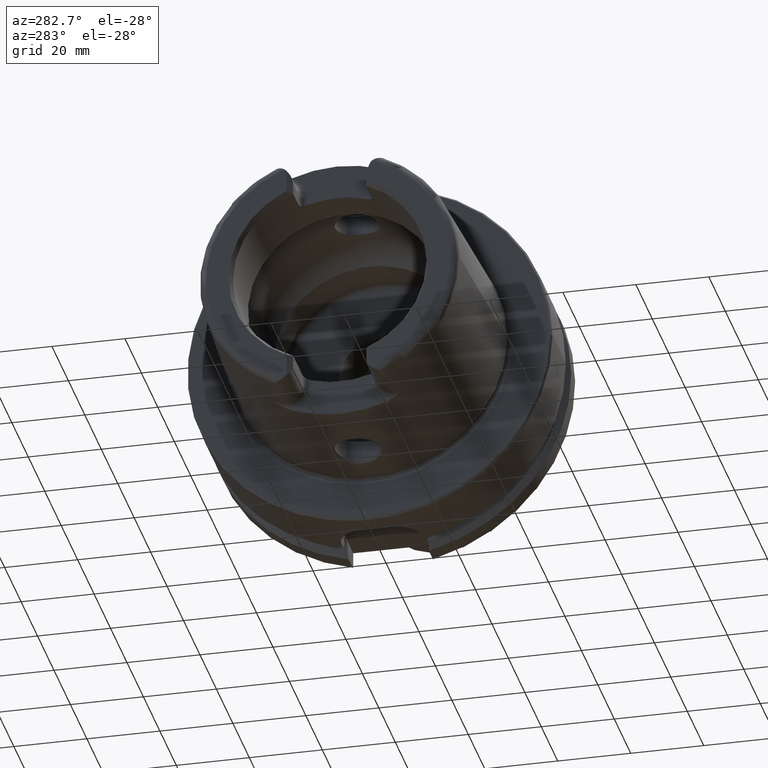
[diagram: clean part render]
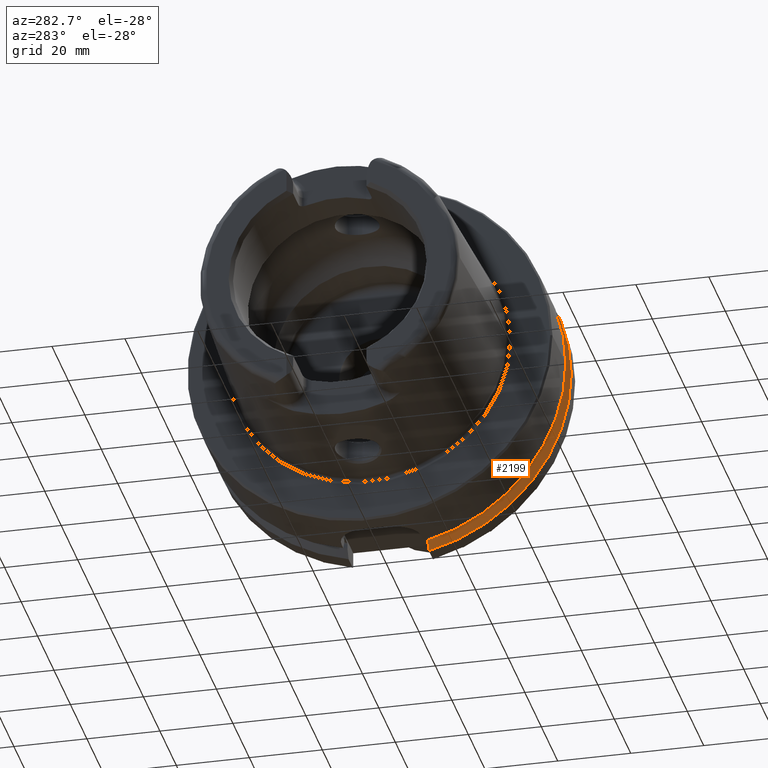
[diagram: same view with one face highlighted and labeled with its STEP entity id]
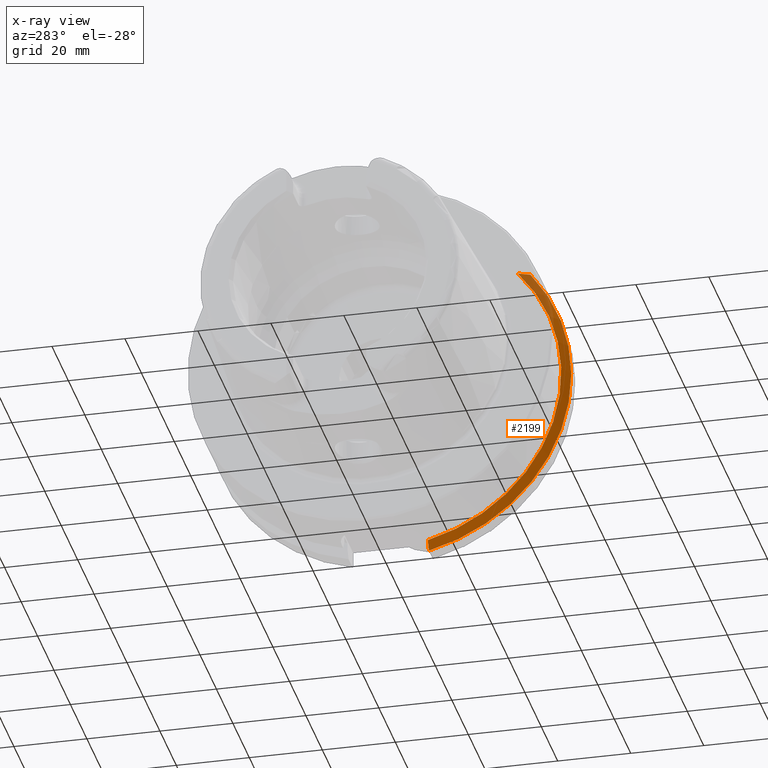
[diagram: x-ray of the same camera — body ghosted, the highlighted face saturated]
A machine part, auxiliary view. The second image highlights one B-rep face of the part: STEP entity #2199.
The next image is the same camera in x-ray: the body ghosted, the highlighted face saturated — about 12% of this face is hidden behind the body in this view.
In plain terms, the highlighted conical surface has half-angle 60 deg.
Its self-contained STEP definition (entity closure, byte-faithful):
#20=(
BOUNDED_CURVE()
B_SPLINE_CURVE(2,(#4195,#4196,#4197),.UNSPECIFIED.,.F.,.F.)
B_SPLINE_CURVE_WITH_KNOTS((3,3),(0.,0.343884390880419),.UNSPECIFIED.)
CURVE()
GEOMETRIC_REPRESENTATION_ITEM()
RATIONAL_B_SPLINE_CURVE((1.,1.00052016257005,1.))
REPRESENTATION_ITEM('')
);
#25=(
BOUNDED_CURVE()
B_SPLINE_CURVE(2,(#4410,#4411,#4412),.UNSPECIFIED.,.F.,.F.)
B_SPLINE_CURVE_WITH_KNOTS((3,3),(0.,0.28292349080556),.UNSPECIFIED.)
CURVE()
GEOMETRIC_REPRESENTATION_ITEM()
RATIONAL_B_SPLINE_CURVE((1.,1.0003193410929,1.))
REPRESENTATION_ITEM('')
);
#159=CONICAL_SURFACE('',#2497,48.7987976320958,1.0471975511966);
#311=FACE_OUTER_BOUND('',#448,.T.);
#448=EDGE_LOOP('',(#2019,#2020,#2021,#2022));
#764=CIRCLE('',#2391,50.);
#816=CIRCLE('',#2496,47.5975952641917);
#951=VERTEX_POINT('',#4192);
#952=VERTEX_POINT('',#4194);
#986=VERTEX_POINT('',#4407);
#987=VERTEX_POINT('',#4409);
#1212=EDGE_CURVE('',#952,#951,#20,.T.);
#1262=EDGE_CURVE('',#987,#986,#25,.T.);
#1278=EDGE_CURVE('',#952,#986,#764,.T.);
#1363=EDGE_CURVE('',#951,#987,#816,.T.);
#2019=ORIENTED_EDGE('',*,*,#1212,.T.);
#2020=ORIENTED_EDGE('',*,*,#1363,.T.);
#2021=ORIENTED_EDGE('',*,*,#1262,.T.);
#2022=ORIENTED_EDGE('',*,*,#1278,.F.);
#2199=ADVANCED_FACE('',(#311),#159,.T.);
#2391=AXIS2_PLACEMENT_3D('',#4472,#2922,#2923);
#2496=AXIS2_PLACEMENT_3D('',#4716,#3156,#3157);
#2497=AXIS2_PLACEMENT_3D('',#4717,#3158,#3159);
#2922=DIRECTION('center_axis',(1.,0.,0.));
#2923=DIRECTION('ref_axis',(0.,0.,-1.));
#3156=DIRECTION('center_axis',(1.,0.,0.));
#3157=DIRECTION('ref_axis',(0.,0.,-1.));
#3158=DIRECTION('center_axis',(1.,0.,0.));
#3159=DIRECTION('ref_axis',(0.,-0.951449961441176,-0.307803461438603));
#4192=CARTESIAN_POINT('',(21.875,-35.6830642593065,31.5));
#4194=CARTESIAN_POINT('',(23.2620290209214,-38.8297566307078,31.5));
#4195=CARTESIAN_POINT('Ctrl Pts',(23.2620290209214,-38.8297566307078,31.5));
#4196=CARTESIAN_POINT('Ctrl Pts',(22.5392272442767,-37.2176818849707,31.5));
#4197=CARTESIAN_POINT('Ctrl Pts',(21.875,-35.6830642593065,31.5));
#4407=CARTESIAN_POINT('',(23.2620290209214,-11.,-48.7749935930288));
#4409=CARTESIAN_POINT('',(21.875,-11.,-46.3090819919138));
#4410=CARTESIAN_POINT('Ctrl Pts',(21.875,-11.,-46.3090819919138));
#4411=CARTESIAN_POINT('Ctrl Pts',(22.5505288964237,-11.,-47.5116880808802));
#4412=CARTESIAN_POINT('Ctrl Pts',(23.2620290209214,-11.,-48.7749935930288));
#4472=CARTESIAN_POINT('Origin',(23.2620290209214,0.,0.));
#4716=CARTESIAN_POINT('Origin',(21.875,0.,0.));
#4717=CARTESIAN_POINT('Origin',(22.5685145104607,0.,0.));